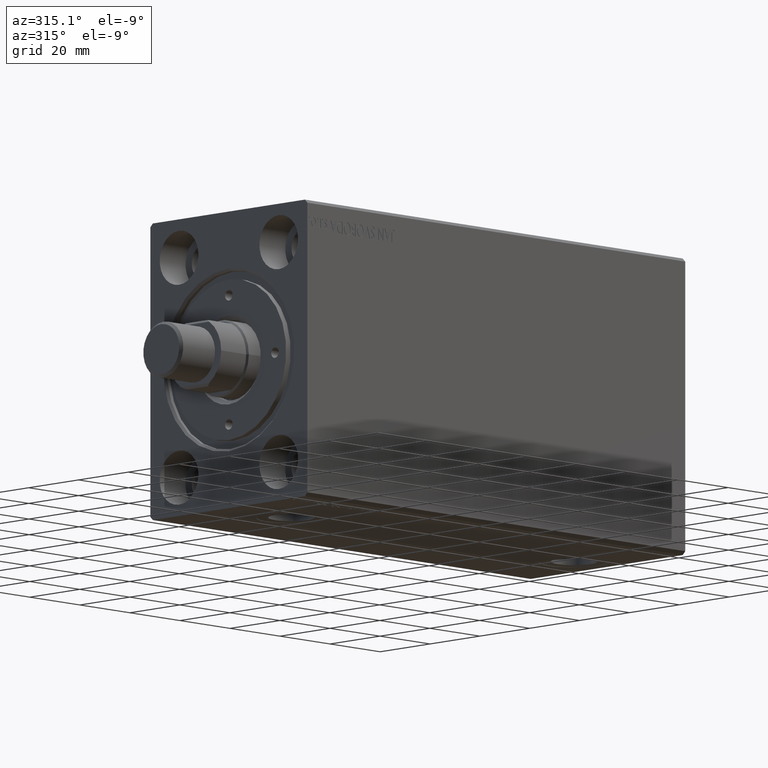
[diagram: clean part render]
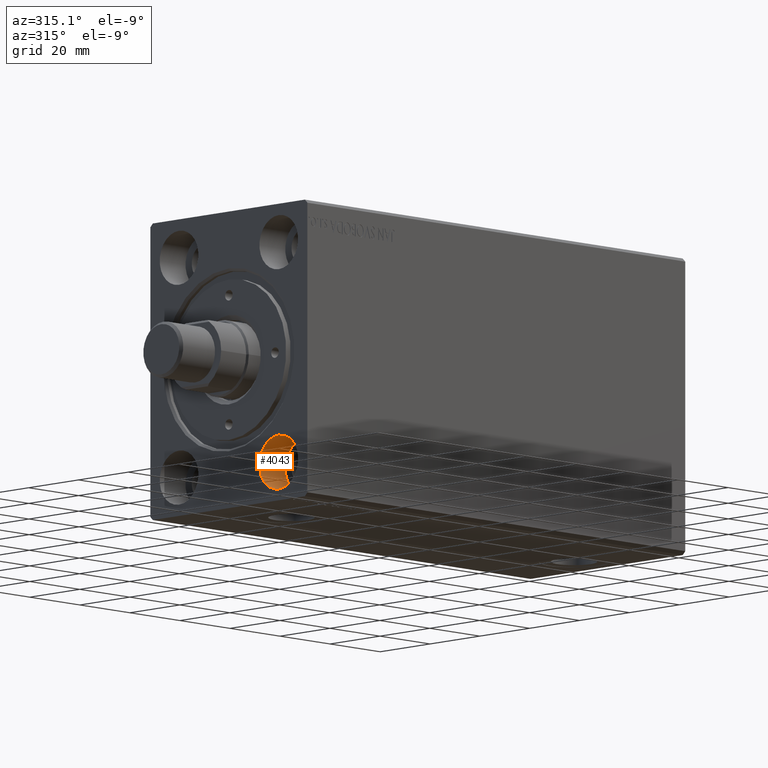
[diagram: same view with one face highlighted and labeled with its STEP entity id]
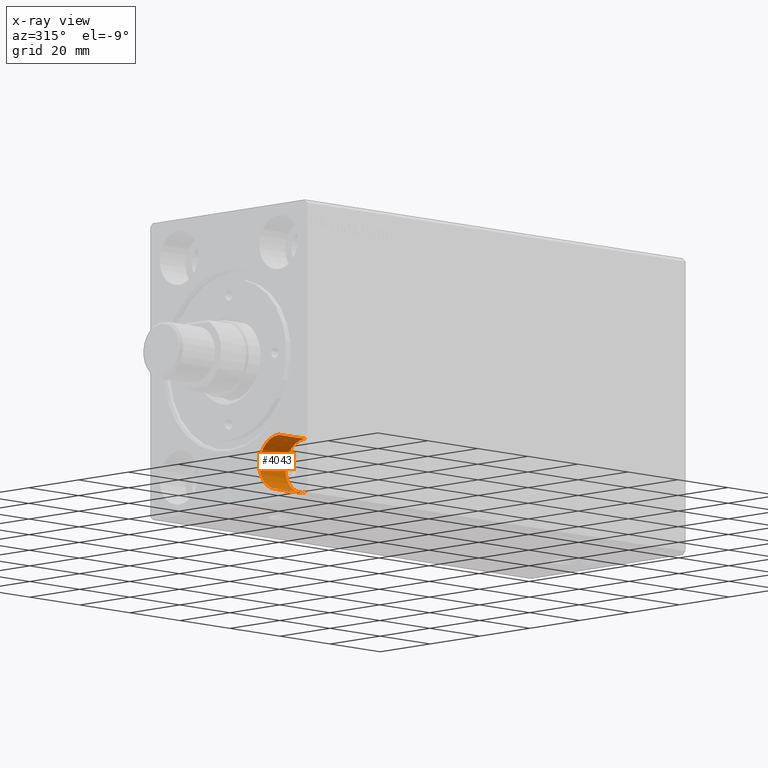
[diagram: x-ray of the same camera — body ghosted, the highlighted face saturated]
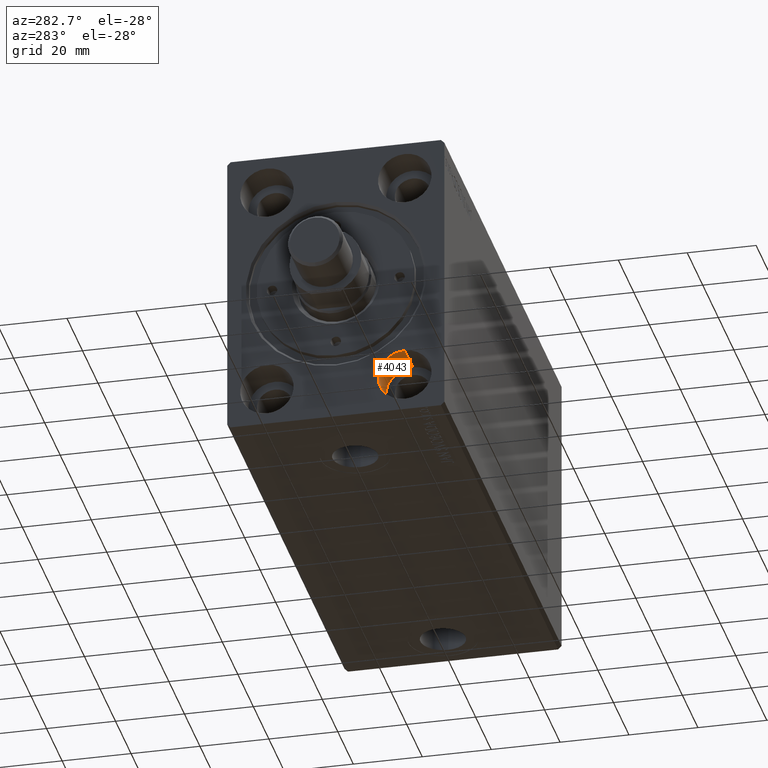
[diagram: same view with one face highlighted and labeled with its STEP entity id]
A machine part, auxiliary view. The second image highlights one B-rep face of the part: STEP entity #4043.
The next image is the same camera in x-ray: the body ghosted, the highlighted face saturated — about 0% of this face is hidden behind the body in this view.
A second angle (auxiliary view) of the same face is appended — the face is thin or edge-on in the first view.
In plain terms, the highlighted cylindrical surface (edge-blend (fillet) strip) has radius 7.75 mm, axis along (-1, -0, -0).
Its self-contained STEP definition (entity closure, byte-faithful):
#42 = ORIENTED_EDGE ( 'NONE', *, *, #2564, .F. ) ;
#1373 = VERTEX_POINT ( 'NONE', #22217 ) ;
#2382 = VERTEX_POINT ( 'NONE', #11152 ) ;
#2564 = EDGE_CURVE ( 'NONE', #27915, #36466, #19011, .T. ) ;
#2616 = CIRCLE ( 'NONE', #44297, 7.750000000000000000 ) ;
#2696 = CYLINDRICAL_SURFACE ( 'NONE', #37053, 7.750000000000000000 ) ;
#3435 = CARTESIAN_POINT ( 'NONE',  ( 10.33000000000000007, -19.99999999999999645, -31.49999999999998579 ) ) ;
#4043 = ADVANCED_FACE ( 'NONE', ( #9000 ), #2696, .F. ) ;
#5024 = LINE ( 'NONE', #19399, #29287 ) ;
#6531 = EDGE_CURVE ( 'NONE', #36466, #2382, #2616, .T. ) ;
#7264 = DIRECTION ( 'NONE',  ( 1.000000000000000000, -0.000000000000000000, -0.000000000000000000 ) ) ;
#7901 = ORIENTED_EDGE ( 'NONE', *, *, #21104, .T. ) ;
#8979 = EDGE_CURVE ( 'NONE', #1373, #2382, #5024, .T. ) ;
#9000 = FACE_OUTER_BOUND ( 'NONE', #35161, .T. ) ;
#11152 = CARTESIAN_POINT ( 'NONE',  ( 0.000000000000000000, -19.99999999999999645, -23.74999999999998579 ) ) ;
#12271 = DIRECTION ( 'NONE',  ( -1.000000000000000000, -0.000000000000000000, -0.000000000000000000 ) ) ;
#13045 = DIRECTION ( 'NONE',  ( 0.000000000000000000, 0.000000000000000000, 1.000000000000000000 ) ) ;
#17205 = ORIENTED_EDGE ( 'NONE', *, *, #8979, .T. ) ;
#19011 = LINE ( 'NONE', #43095, #19062 ) ;
#19062 = VECTOR ( 'NONE', #12271, 1000.000000000000000 ) ;
#19399 = CARTESIAN_POINT ( 'NONE',  ( 10.33000000000000007, -19.99999999999999645, -23.74999999999998579 ) ) ;
#21104 = EDGE_CURVE ( 'NONE', #27915, #1373, #41001, .T. ) ;
#22217 = CARTESIAN_POINT ( 'NONE',  ( 10.33000000000000007, -19.99999999999999645, -23.74999999999998579 ) ) ;
#22836 = ORIENTED_EDGE ( 'NONE', *, *, #6531, .F. ) ;
#27915 = VERTEX_POINT ( 'NONE', #37543 ) ;
#29287 = VECTOR ( 'NONE', #32470, 1000.000000000000000 ) ;
#29493 = DIRECTION ( 'NONE',  ( -1.000000000000000000, -0.000000000000000000, -0.000000000000000000 ) ) ;
#29847 = CARTESIAN_POINT ( 'NONE',  ( 0.000000000000000000, -19.99999999999999645, -39.24999999999998579 ) ) ;
#30709 = DIRECTION ( 'NONE',  ( 1.000000000000000000, -0.000000000000000000, -0.000000000000000000 ) ) ;
#32470 = DIRECTION ( 'NONE',  ( -1.000000000000000000, -0.000000000000000000, -0.000000000000000000 ) ) ;
#34092 = CARTESIAN_POINT ( 'NONE',  ( 0.000000000000000000, -19.99999999999999645, -31.49999999999998579 ) ) ;
#35161 = EDGE_LOOP ( 'NONE', ( #42, #7901, #17205, #22836 ) ) ;
#36466 = VERTEX_POINT ( 'NONE', #29847 ) ;
#37053 = AXIS2_PLACEMENT_3D ( 'NONE', #40494, #29493, #13045 ) ;
#37543 = CARTESIAN_POINT ( 'NONE',  ( 10.33000000000000007, -19.99999999999999645, -39.24999999999998579 ) ) ;
#38121 = AXIS2_PLACEMENT_3D ( 'NONE', #3435, #7264, #44372 ) ;
#40494 = CARTESIAN_POINT ( 'NONE',  ( 10.33000000000000007, -19.99999999999999645, -31.49999999999998579 ) ) ;
#41001 = CIRCLE ( 'NONE', #38121, 7.750000000000000000 ) ;
#43095 = CARTESIAN_POINT ( 'NONE',  ( 10.33000000000000007, -19.99999999999999645, -39.24999999999998579 ) ) ;
#43551 = DIRECTION ( 'NONE',  ( 0.000000000000000000, 0.000000000000000000, -1.000000000000000000 ) ) ;
#44297 = AXIS2_PLACEMENT_3D ( 'NONE', #34092, #30709, #43551 ) ;
#44372 = DIRECTION ( 'NONE',  ( 0.000000000000000000, 0.000000000000000000, -1.000000000000000000 ) ) ;